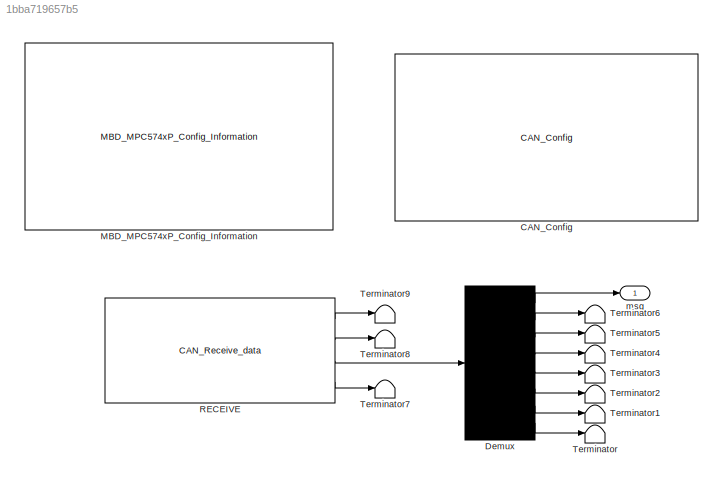
MODEL slx_1bba719657b5
KIND model
CONFIG AbsTol = auto
CONFIG EnableMultiTasking = off
CONFIG FixedStep = 0.1
CONFIG InitFcn = mbd_pnt_consistency_checks(bdroot(gcs));
CONFIG MaxStep = auto
CONFIG MinStep = auto
CONFIG RelTol = 1e-3
CONFIG SampleTimeConstraint = Unconstrained
CONFIG Solver = FixedStepDiscrete
CONFIG SolverName = FixedStepDiscrete
CONFIG StartTime = 0.0
CONFIG StopTime = 10.0
BLOCK [Reference] CAN_Config  REF=mbd_pnt_ec_toolbox/MPC574xP/Communication Blocks/CAN_Config
  Ports = []
  Priority = 1
  SourceBlock = mbd_pnt_ec_toolbox/MPC574xP/Communication Blocks/CAN_Config
  SourceProductName = Model Based Design Toolbox for MPC574xP
  SourceType = flexcan_pnt_config_block
BLOCK [Demux] Demux
  DisplayOption = bar
  Outputs = 8
  Ports = [1, 8]
BLOCK [Reference] MBD_MPC574xP_Config_Information  REF=mbd_pnt_ec_toolbox/MPC574xP/MBD_MPC574xP_Config_Information
  Ports = []
  SourceBlock = mbd_pnt_ec_toolbox/MPC574xP/MBD_MPC574xP_Config_Information
  SourceProductName = Model Based Design Toolbox for MPC574xP
  SourceType = MBDTBX_EC_PNT
BLOCK [Reference] RECEIVE  REF=mbd_pnt_ec_toolbox/MPC574xP/Communication Blocks/CAN_Receive_data
  Ports = [0, 4]
  SourceBlock = mbd_pnt_ec_toolbox/MPC574xP/Communication Blocks/CAN_Receive_data
  SourceProductName = Model Based Design Toolbox for MPC574xP
  SourceType = flexcan_pnt_receive_data_block
BLOCK [Terminator] Terminator
BLOCK [Terminator] Terminator1
BLOCK [Terminator] Terminator2
BLOCK [Terminator] Terminator3
BLOCK [Terminator] Terminator4
BLOCK [Terminator] Terminator5
BLOCK [Terminator] Terminator6
BLOCK [Terminator] Terminator7
BLOCK [Terminator] Terminator8
BLOCK [Terminator] Terminator9
BLOCK [Outport] msg
  IconDisplay = Port number
LINE Demux:1 -> msg:1
LINE Demux:2 -> Terminator6:1
LINE Demux:3 -> Terminator5:1
LINE Demux:4 -> Terminator4:1
LINE Demux:5 -> Terminator3:1
LINE Demux:6 -> Terminator2:1
LINE Demux:7 -> Terminator1:1
LINE Demux:8 -> Terminator:1
LINE RECEIVE:1 -> Terminator9:1
LINE RECEIVE:2 -> Terminator8:1
LINE RECEIVE:3 -> Demux:1
LINE RECEIVE:4 -> Terminator7:1
